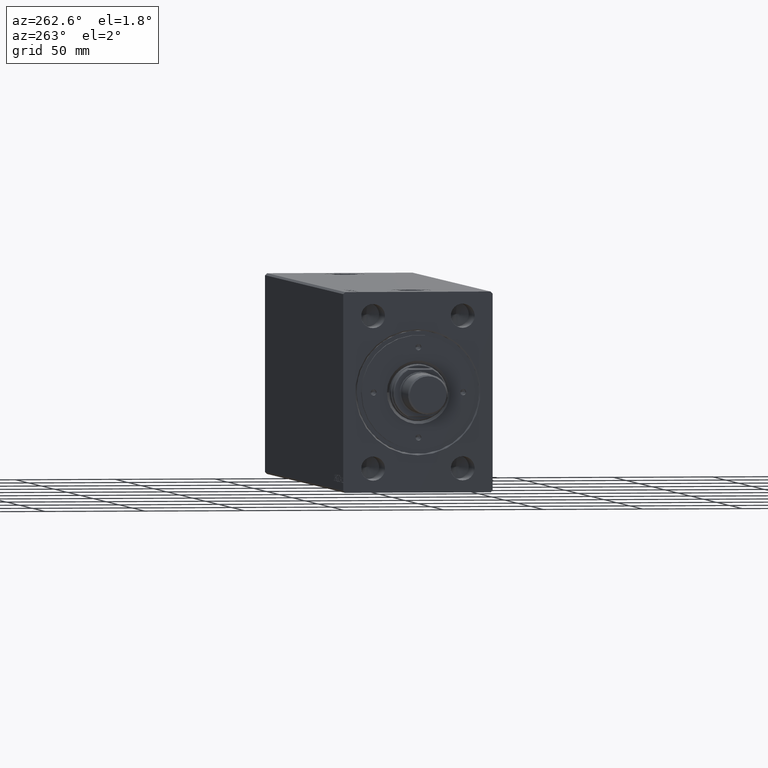
[diagram: clean part render]
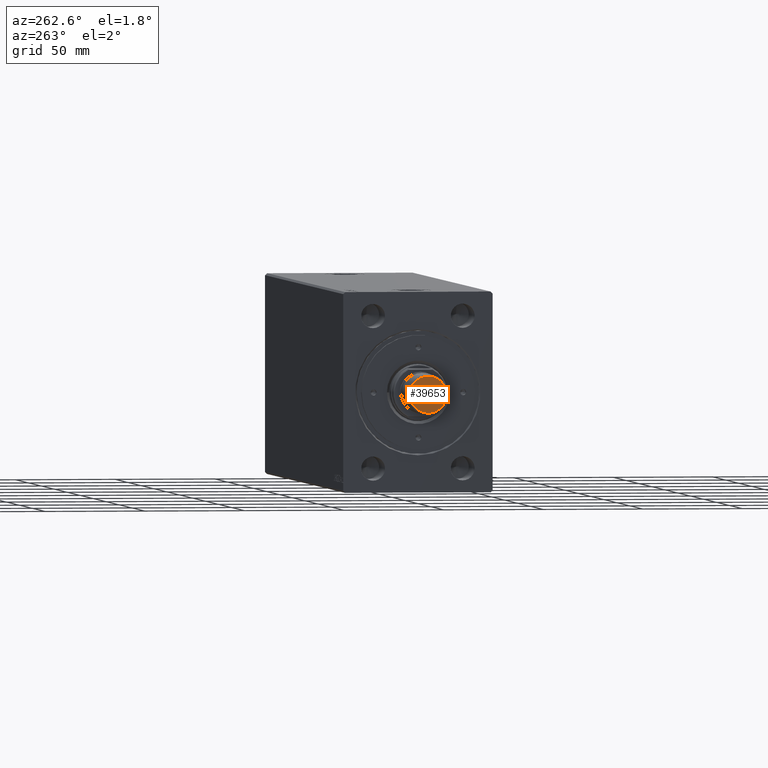
[diagram: same view with one face highlighted and labeled with its STEP entity id]
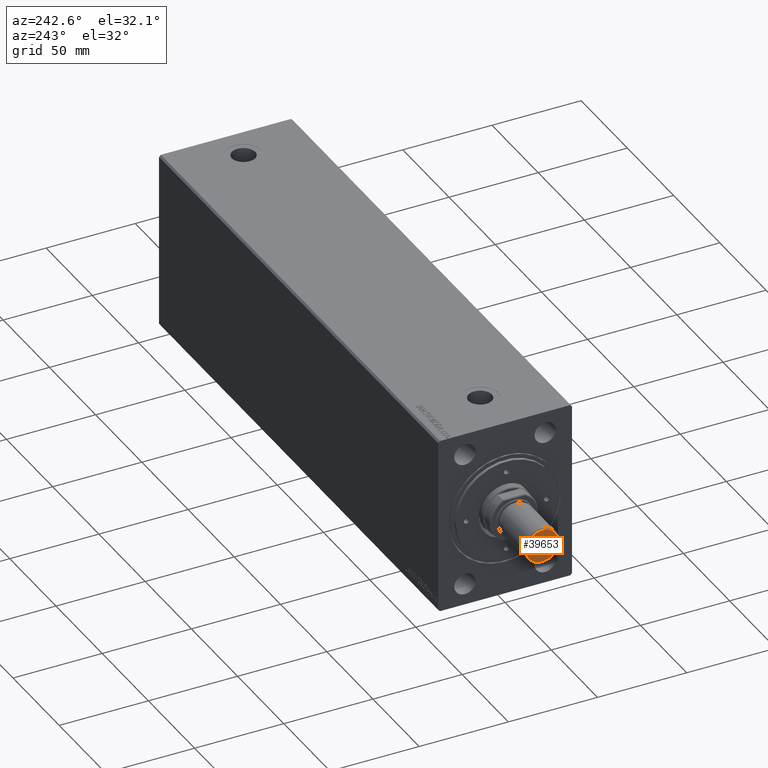
[diagram: same view with one face highlighted and labeled with its STEP entity id]
A machine part, auxiliary view. The second image highlights one B-rep face of the part: STEP entity #39653.
A second angle (auxiliary view) of the same face is appended — the face is thin or edge-on in the first view.
In plain terms, the highlighted planar face has unit normal (1, -0, -0).
Its self-contained STEP definition (entity closure, byte-faithful):
#2376 = DIRECTION ( 'NONE',  ( 1.000000000000000000, 0.000000000000000000, 0.000000000000000000 ) ) ;
#6149 = DIRECTION ( 'NONE',  ( 0.000000000000000000, 0.000000000000000000, 1.000000000000000000 ) ) ;
#7574 = ORIENTED_EDGE ( 'NONE', *, *, #21826, .T. ) ;
#7874 = CIRCLE ( 'NONE', #25086, 9.199999999999999289 ) ;
#12920 = DIRECTION ( 'NONE',  ( -0.000000000000000000, -0.000000000000000000, -1.000000000000000000 ) ) ;
#13404 = CIRCLE ( 'NONE', #40678, 9.199999999999999289 ) ;
#13761 = VERTEX_POINT ( 'NONE', #26216 ) ;
#20957 = AXIS2_PLACEMENT_3D ( 'NONE', #40101, #6149, #33802 ) ;
#21826 = EDGE_CURVE ( 'NONE', #13761, #33702, #7874, .T. ) ;
#23476 = DIRECTION ( 'NONE',  ( 1.000000000000000000, 0.000000000000000000, 0.000000000000000000 ) ) ;
#23961 = CARTESIAN_POINT ( 'NONE',  ( 9.199999999999999289, 0.000000000000000000, 0.000000000000000000 ) ) ;
#25086 = AXIS2_PLACEMENT_3D ( 'NONE', #32922, #12920, #23476 ) ;
#26216 = CARTESIAN_POINT ( 'NONE',  ( -9.199999999999999289, 1.175660927181458842E-15, 0.000000000000000000 ) ) ;
#29338 = EDGE_LOOP ( 'NONE', ( #30639, #7574 ) ) ;
#30639 = ORIENTED_EDGE ( 'NONE', *, *, #31672, .T. ) ;
#31672 = EDGE_CURVE ( 'NONE', #33702, #13761, #13404, .T. ) ;
#32922 = CARTESIAN_POINT ( 'NONE',  ( 0.000000000000000000, 0.000000000000000000, 0.000000000000000000 ) ) ;
#33178 = CARTESIAN_POINT ( 'NONE',  ( 0.000000000000000000, 0.000000000000000000, 0.000000000000000000 ) ) ;
#33702 = VERTEX_POINT ( 'NONE', #23961 ) ;
#33802 = DIRECTION ( 'NONE',  ( 1.000000000000000000, 0.000000000000000000, -0.000000000000000000 ) ) ;
#36107 = DIRECTION ( 'NONE',  ( -0.000000000000000000, -0.000000000000000000, -1.000000000000000000 ) ) ;
#39653 = ADVANCED_FACE ( 'NONE', ( #44155 ), #43705, .F. ) ;
#40101 = CARTESIAN_POINT ( 'NONE',  ( 0.000000000000000000, 0.000000000000000000, 0.000000000000000000 ) ) ;
#40678 = AXIS2_PLACEMENT_3D ( 'NONE', #33178, #36107, #2376 ) ;
#43705 = PLANE ( 'NONE',  #20957 ) ;
#44155 = FACE_OUTER_BOUND ( 'NONE', #29338, .T. ) ;